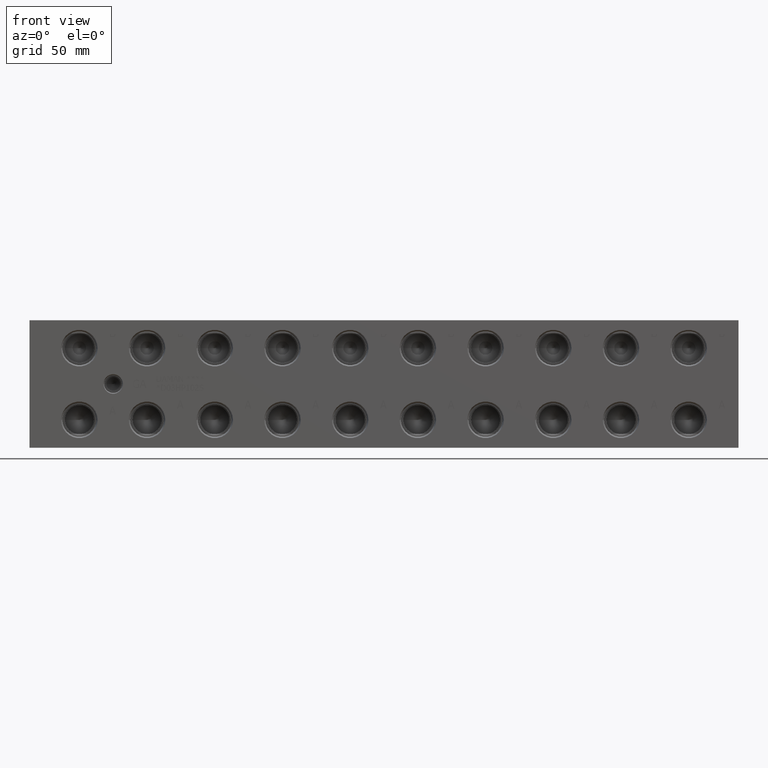
[diagram: clean part render]
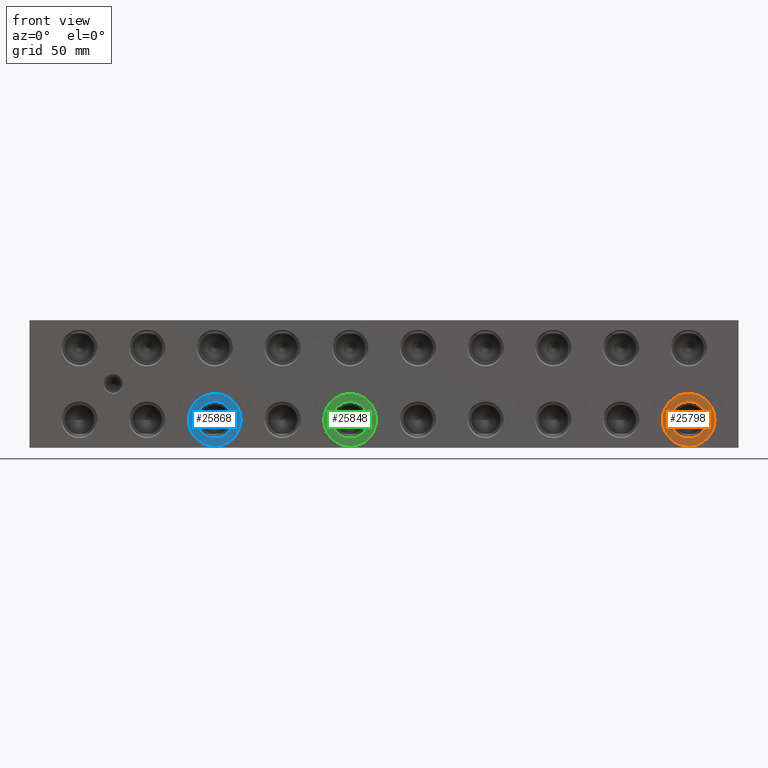
[diagram: same view with three faces highlighted in distinct colors, each labeled with its STEP entity id]
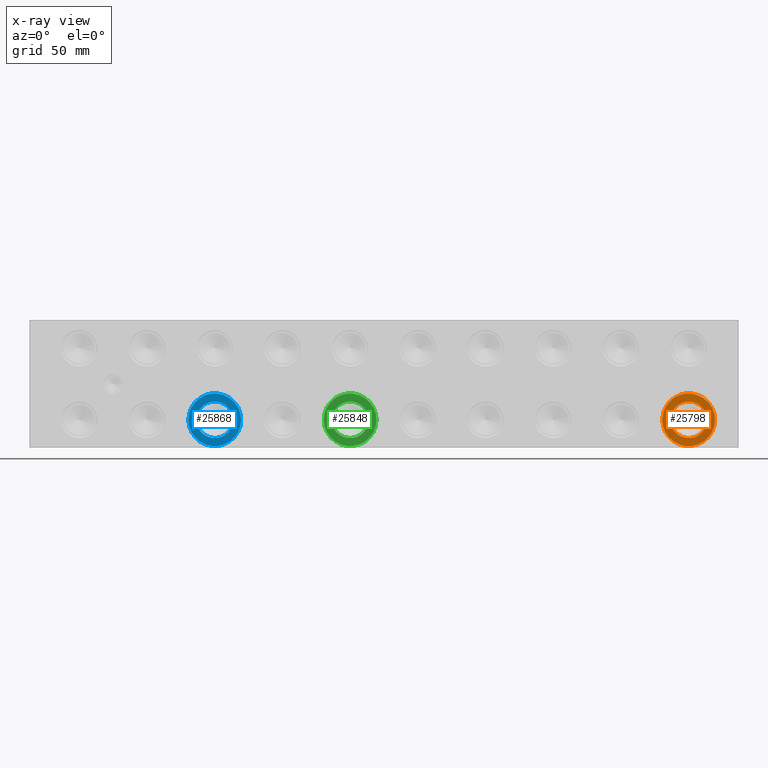
[diagram: x-ray of the same camera — body ghosted, the three highlighted faces saturated]
A machine part, front view with three faces highlighted in distinct colors.
The next image is the same camera in x-ray (body ghosted, the three faces saturated) — at least one of them is partly hidden behind the body in this view.
Their STEP definitions:

[orange] entity #25798 — the highlighted planar face has unit normal (0, 1, 0).
#662=CIRCLE('',#27100,21.0185);
#663=CIRCLE('',#27101,21.0185);
#664=CIRCLE('',#27103,14.5923);
#665=CIRCLE('',#27104,14.5923);
#1640=FACE_BOUND('',#4844,.T.);
#2364=PLANE('',#27102);
#3330=FACE_OUTER_BOUND('',#4843,.T.);
#4843=EDGE_LOOP('',(#21280,#21281));
#4844=EDGE_LOOP('',(#21282,#21283));
#11917=VERTEX_POINT('',#43204);
#11918=VERTEX_POINT('',#43206);
#11919=VERTEX_POINT('',#43210);
#11920=VERTEX_POINT('',#43211);
#15276=EDGE_CURVE('',#11917,#11918,#662,.T.);
#15277=EDGE_CURVE('',#11918,#11917,#663,.T.);
#15278=EDGE_CURVE('',#11919,#11920,#664,.T.);
#15279=EDGE_CURVE('',#11920,#11919,#665,.T.);
#21280=ORIENTED_EDGE('',*,*,#15277,.F.);
#21281=ORIENTED_EDGE('',*,*,#15276,.F.);
#21282=ORIENTED_EDGE('',*,*,#15278,.T.);
#21283=ORIENTED_EDGE('',*,*,#15279,.T.);
#25798=ADVANCED_FACE('',(#3330,#1640),#2364,.F.);
#27100=AXIS2_PLACEMENT_3D('',#43207,#31724,#31725);
#27101=AXIS2_PLACEMENT_3D('',#43208,#31726,#31727);
#27102=AXIS2_PLACEMENT_3D('',#43209,#31728,#31729);
#27103=AXIS2_PLACEMENT_3D('',#43212,#31730,#31731);
#27104=AXIS2_PLACEMENT_3D('',#43213,#31732,#31733);
#31724=DIRECTION('center_axis',(0.,1.,0.));
#31725=DIRECTION('ref_axis',(1.,0.,0.));
#31726=DIRECTION('center_axis',(0.,1.,0.));
#31727=DIRECTION('ref_axis',(1.,0.,0.));
#31728=DIRECTION('center_axis',(0.,1.,0.));
#31729=DIRECTION('ref_axis',(0.,0.,1.));
#31730=DIRECTION('center_axis',(0.,1.,0.));
#31731=DIRECTION('ref_axis',(1.,0.,0.));
#31732=DIRECTION('center_axis',(0.,1.,0.));
#31733=DIRECTION('ref_axis',(1.,0.,0.));
#43204=CARTESIAN_POINT('',(504.4313,0.7874,22.225));
#43206=CARTESIAN_POINT('',(546.4683,0.7874,22.225));
#43207=CARTESIAN_POINT('Origin',(525.4498,0.7874,22.225));
#43208=CARTESIAN_POINT('Origin',(525.4498,0.7874,22.225));
#43209=CARTESIAN_POINT('Origin',(540.0421,0.7874,22.225));
#43210=CARTESIAN_POINT('',(540.0421,0.7874,22.225));
#43211=CARTESIAN_POINT('',(510.8575,0.787400000000009,22.225));
#43212=CARTESIAN_POINT('Origin',(525.4498,0.7874,22.225));
#43213=CARTESIAN_POINT('Origin',(525.4498,0.7874,22.225));

[blue] entity #25868 — the highlighted planar face has unit normal (0, 1, 0).
#788=CIRCLE('',#27296,21.0185);
#789=CIRCLE('',#27297,21.0185);
#790=CIRCLE('',#27299,14.5923);
#791=CIRCLE('',#27300,14.5923);
#1654=FACE_BOUND('',#4928,.T.);
#2378=PLANE('',#27298);
#3400=FACE_OUTER_BOUND('',#4927,.T.);
#4927=EDGE_LOOP('',(#21658,#21659));
#4928=EDGE_LOOP('',(#21660,#21661));
#12043=VERTEX_POINT('',#43582);
#12044=VERTEX_POINT('',#43584);
#12045=VERTEX_POINT('',#43588);
#12046=VERTEX_POINT('',#43589);
#15458=EDGE_CURVE('',#12043,#12044,#788,.T.);
#15459=EDGE_CURVE('',#12044,#12043,#789,.T.);
#15460=EDGE_CURVE('',#12045,#12046,#790,.T.);
#15461=EDGE_CURVE('',#12046,#12045,#791,.T.);
#21658=ORIENTED_EDGE('',*,*,#15459,.F.);
#21659=ORIENTED_EDGE('',*,*,#15458,.F.);
#21660=ORIENTED_EDGE('',*,*,#15460,.T.);
#21661=ORIENTED_EDGE('',*,*,#15461,.T.);
#25868=ADVANCED_FACE('',(#3400,#1654),#2378,.F.);
#27296=AXIS2_PLACEMENT_3D('',#43585,#32172,#32173);
#27297=AXIS2_PLACEMENT_3D('',#43586,#32174,#32175);
#27298=AXIS2_PLACEMENT_3D('',#43587,#32176,#32177);
#27299=AXIS2_PLACEMENT_3D('',#43590,#32178,#32179);
#27300=AXIS2_PLACEMENT_3D('',#43591,#32180,#32181);
#32172=DIRECTION('center_axis',(0.,1.,0.));
#32173=DIRECTION('ref_axis',(1.,0.,0.));
#32174=DIRECTION('center_axis',(0.,1.,0.));
#32175=DIRECTION('ref_axis',(1.,0.,0.));
#32176=DIRECTION('center_axis',(0.,1.,0.));
#32177=DIRECTION('ref_axis',(0.,0.,1.));
#32178=DIRECTION('center_axis',(0.,1.,0.));
#32179=DIRECTION('ref_axis',(1.,0.,0.));
#32180=DIRECTION('center_axis',(0.,1.,0.));
#32181=DIRECTION('ref_axis',(1.,0.,0.));
#43582=CARTESIAN_POINT('',(126.6063,0.7874,22.225));
#43584=CARTESIAN_POINT('',(168.6433,0.7874,22.225));
#43585=CARTESIAN_POINT('Origin',(147.6248,0.7874,22.225));
#43586=CARTESIAN_POINT('Origin',(147.6248,0.7874,22.225));
#43587=CARTESIAN_POINT('Origin',(162.2171,0.7874,22.225));
#43588=CARTESIAN_POINT('',(162.2171,0.7874,22.225));
#43589=CARTESIAN_POINT('',(133.0325,0.787399999999995,22.225));
#43590=CARTESIAN_POINT('Origin',(147.6248,0.7874,22.225));
#43591=CARTESIAN_POINT('Origin',(147.6248,0.7874,22.225));

[green] entity #25848 — the highlighted planar face has unit normal (0, 1, 0).
#752=CIRCLE('',#27240,21.0185);
#753=CIRCLE('',#27241,21.0185);
#754=CIRCLE('',#27243,14.5923);
#755=CIRCLE('',#27244,14.5923);
#1650=FACE_BOUND('',#4904,.T.);
#2374=PLANE('',#27242);
#3380=FACE_OUTER_BOUND('',#4903,.T.);
#4903=EDGE_LOOP('',(#21550,#21551));
#4904=EDGE_LOOP('',(#21552,#21553));
#12007=VERTEX_POINT('',#43474);
#12008=VERTEX_POINT('',#43476);
#12009=VERTEX_POINT('',#43480);
#12010=VERTEX_POINT('',#43481);
#15406=EDGE_CURVE('',#12007,#12008,#752,.T.);
#15407=EDGE_CURVE('',#12008,#12007,#753,.T.);
#15408=EDGE_CURVE('',#12009,#12010,#754,.T.);
#15409=EDGE_CURVE('',#12010,#12009,#755,.T.);
#21550=ORIENTED_EDGE('',*,*,#15407,.F.);
#21551=ORIENTED_EDGE('',*,*,#15406,.F.);
#21552=ORIENTED_EDGE('',*,*,#15408,.T.);
#21553=ORIENTED_EDGE('',*,*,#15409,.T.);
#25848=ADVANCED_FACE('',(#3380,#1650),#2374,.F.);
#27240=AXIS2_PLACEMENT_3D('',#43477,#32044,#32045);
#27241=AXIS2_PLACEMENT_3D('',#43478,#32046,#32047);
#27242=AXIS2_PLACEMENT_3D('',#43479,#32048,#32049);
#27243=AXIS2_PLACEMENT_3D('',#43482,#32050,#32051);
#27244=AXIS2_PLACEMENT_3D('',#43483,#32052,#32053);
#32044=DIRECTION('center_axis',(0.,1.,0.));
#32045=DIRECTION('ref_axis',(1.,0.,0.));
#32046=DIRECTION('center_axis',(0.,1.,0.));
#32047=DIRECTION('ref_axis',(1.,0.,0.));
#32048=DIRECTION('center_axis',(0.,1.,0.));
#32049=DIRECTION('ref_axis',(0.,0.,1.));
#32050=DIRECTION('center_axis',(0.,1.,0.));
#32051=DIRECTION('ref_axis',(1.,0.,0.));
#32052=DIRECTION('center_axis',(0.,1.,0.));
#32053=DIRECTION('ref_axis',(1.,0.,0.));
#43474=CARTESIAN_POINT('',(234.5563,0.7874,22.225));
#43476=CARTESIAN_POINT('',(276.5933,0.7874,22.225));
#43477=CARTESIAN_POINT('Origin',(255.5748,0.7874,22.225));
#43478=CARTESIAN_POINT('Origin',(255.5748,0.7874,22.225));
#43479=CARTESIAN_POINT('Origin',(270.1671,0.7874,22.225));
#43480=CARTESIAN_POINT('',(270.1671,0.7874,22.225));
#43481=CARTESIAN_POINT('',(240.9825,0.787399999999995,22.225));
#43482=CARTESIAN_POINT('Origin',(255.5748,0.7874,22.225));
#43483=CARTESIAN_POINT('Origin',(255.5748,0.7874,22.225));